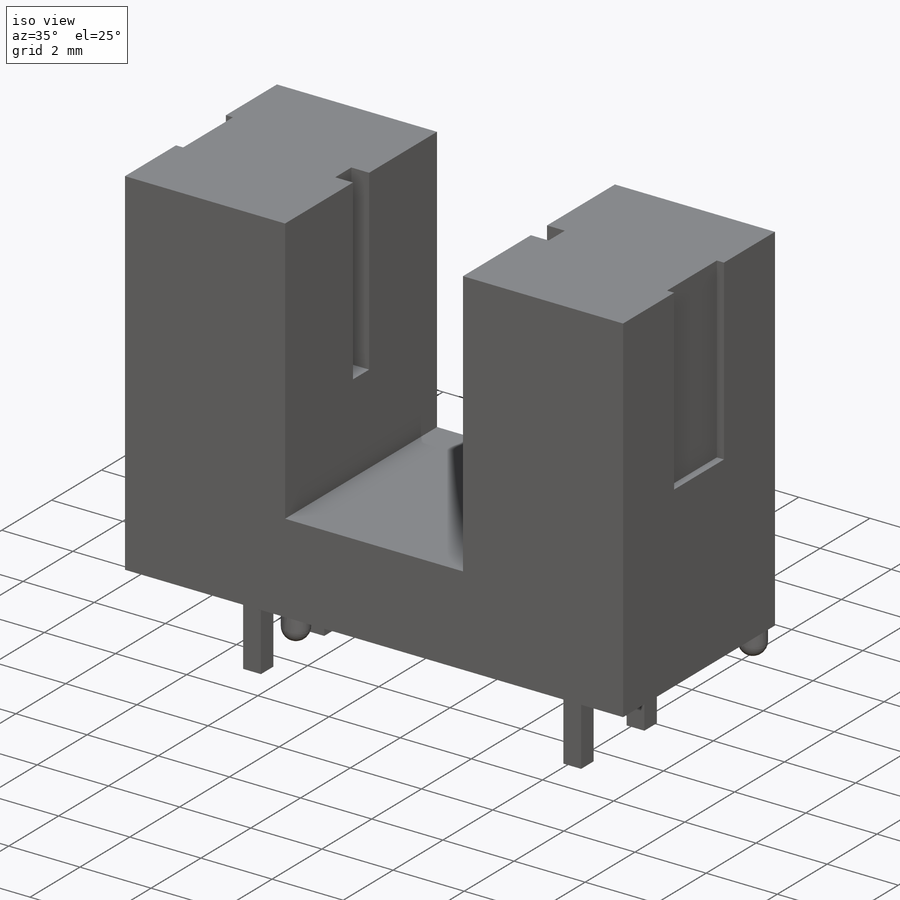
[diagram: iso view]
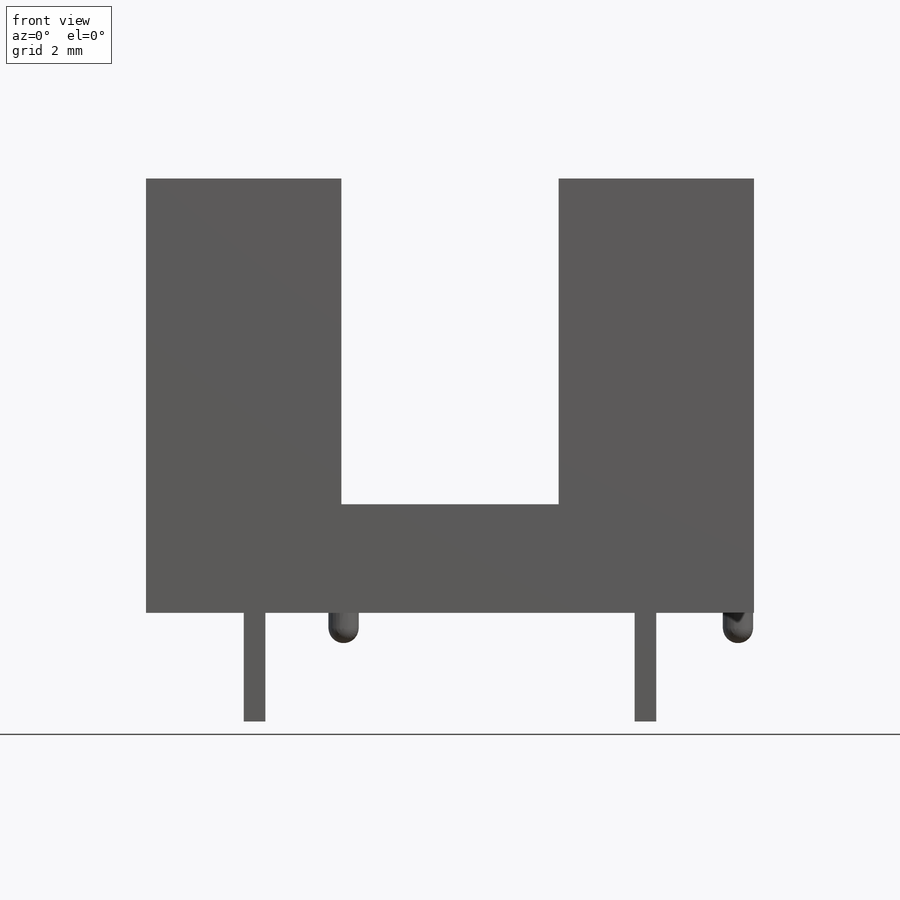
[diagram: front view]
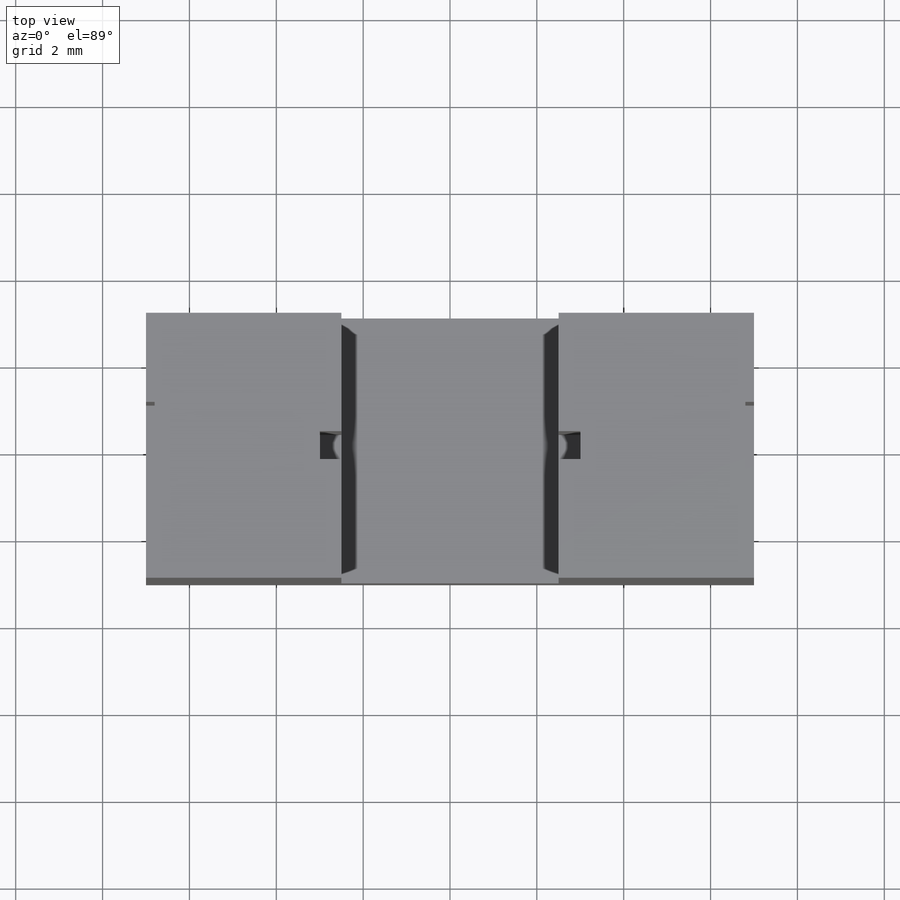
[diagram: top view]
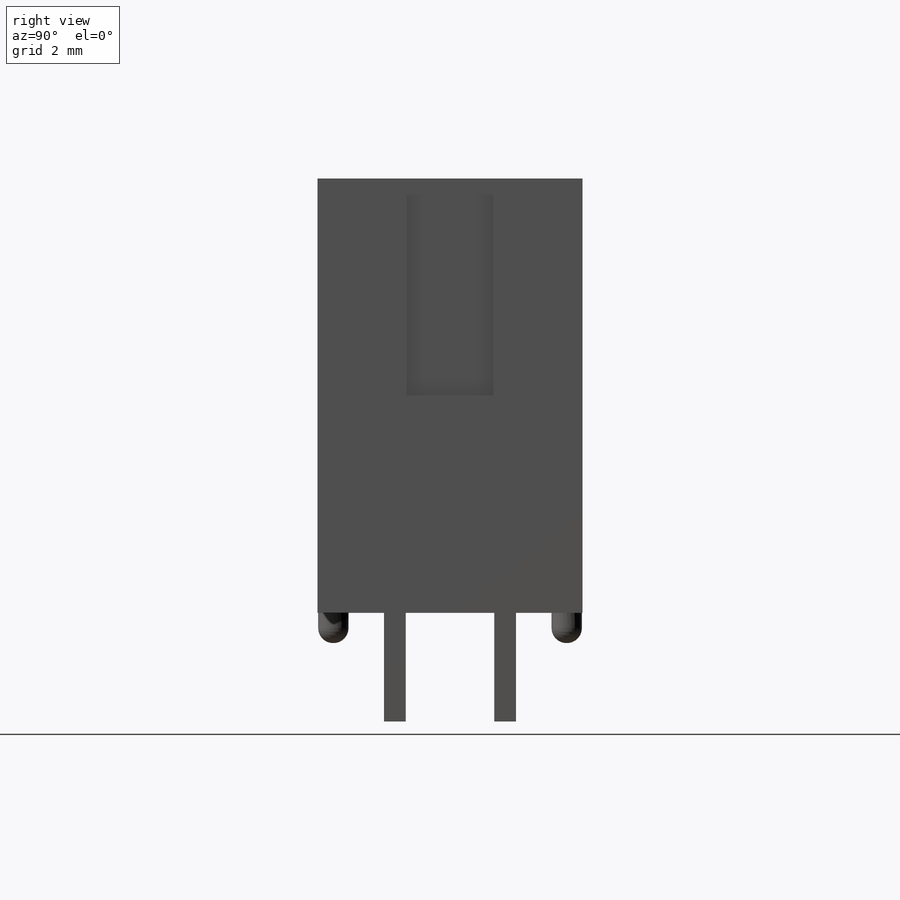
[diagram: right view]
SOLIDWORKS PART (.sldprt)
format: sldprt  version: not decoded by parser v0  size: 296,960 bytes
history: native  units: mm
features: sketch x11, extrude x5, cut_extrude x4, plane x3, material x1, fillet x1 (+12 scaffold rows collapsed)
feature tree (37):
  scaffold x12  (default folders/planes/origin — collapsed)
  material  "Material <not specified>"
  sketch  "Sketch1"  dims[D1=5.0mm D2=2.5mm D3=2.5mm D4=10.0mm D5=14.0mm D6=7.0mm]
  extrude  "Extrude1"  Depth=3.05mm
  plane  "Plane1"  Offset=4.5mm
  plane  "Plane2"  Offset=4.5mm
  sketch  "Sketch2"  dims[c1.D1=2.54mm c1.D2=1.27mm c1.D3=2.5mm c2.D1=0.25mm c2.D2=0.25mm c2.D5=0.5mm c2.D6=0.5mm c2.D7=5.0mm]
  extrude  "Extrude-Thin2"  [1 undecoded]
  sketch  "Sketch2<3>"  dims[D1=0.25mm D2=0.25mm D5=0.5mm D6=0.5mm D7=5.0mm]
  sketch  "Sketch3"
  extrude  "Extrude-Thin3"  Depth=0.25mm
  extrude  "Extrude-Thin4"  [1 undecoded]
  sketch  "Sketch3<3>"  dims[D1=0.25mm D2=0.25mm D5=0.5mm D6=0.5mm D7=5.0mm]
  sketch  "Sketch4"  dims[D1=4.55mm]
  extrude  "Extrude2"  Depth=0.7mm
  fillet  "Fillet1"  Radius=0.35mm
  sketch  "Sketch5"  dims[D1=3.0mm]
  cut_extrude  "Cut-Extrude1"  Depth=0.2mm
  sketch  "Sketch6"  dims[D1=0.0mm]
  cut_extrude  "Cut-Extrude2"  Depth=0.2mm
  sketch  "Sketch7"  dims[D2=2.0mm D1=0.0mm]
  cut_extrude  "Cut-Extrude3"  Depth=0.5mm
  sketch  "Sketch8"  dims[D1=0.0mm]
  cut_extrude  "Cut-Extrude4"  Depth=0.5mm
  plane  "Board Plane"  Offset=0.7mm
  sketch  "Component_Outline"
decode coverage: 17 of 21 modeling features carry decoded parameters
note: 2 parameter values undecoded
note: suppression state not decoded; provenance and decode notes live in map.json
